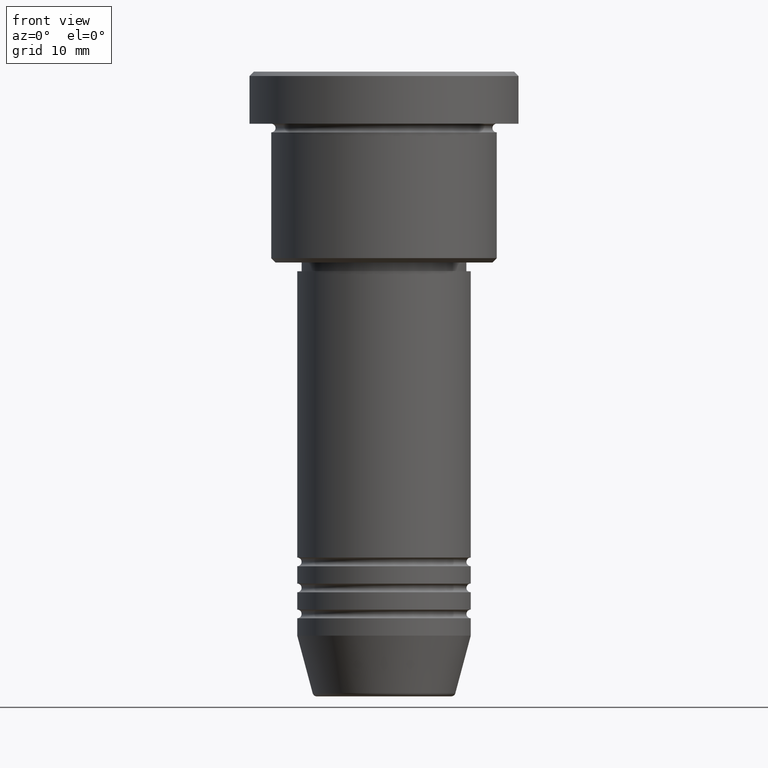
[diagram: clean part render]
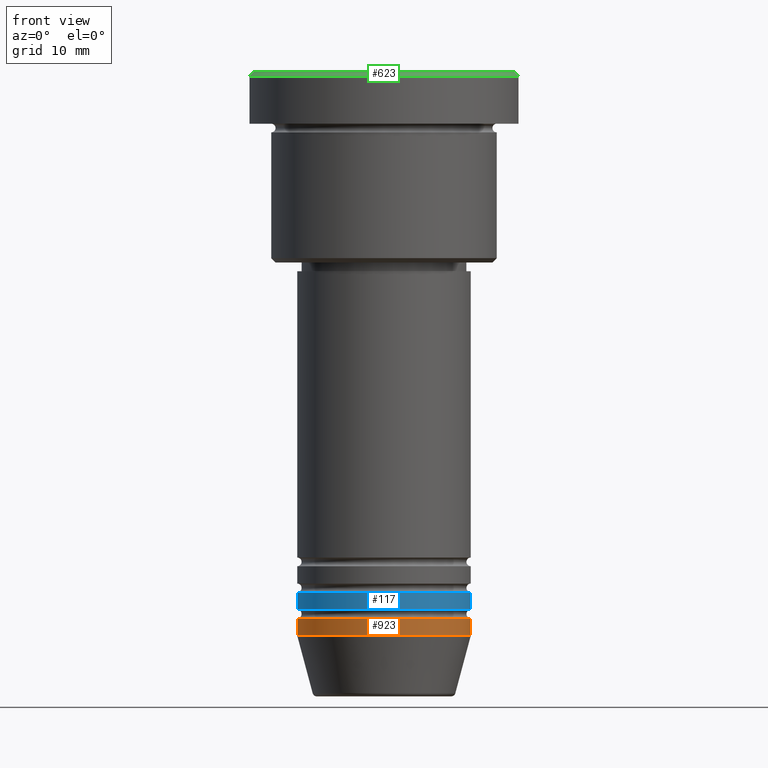
[diagram: same view with three faces highlighted in distinct colors, each labeled with its STEP entity id]
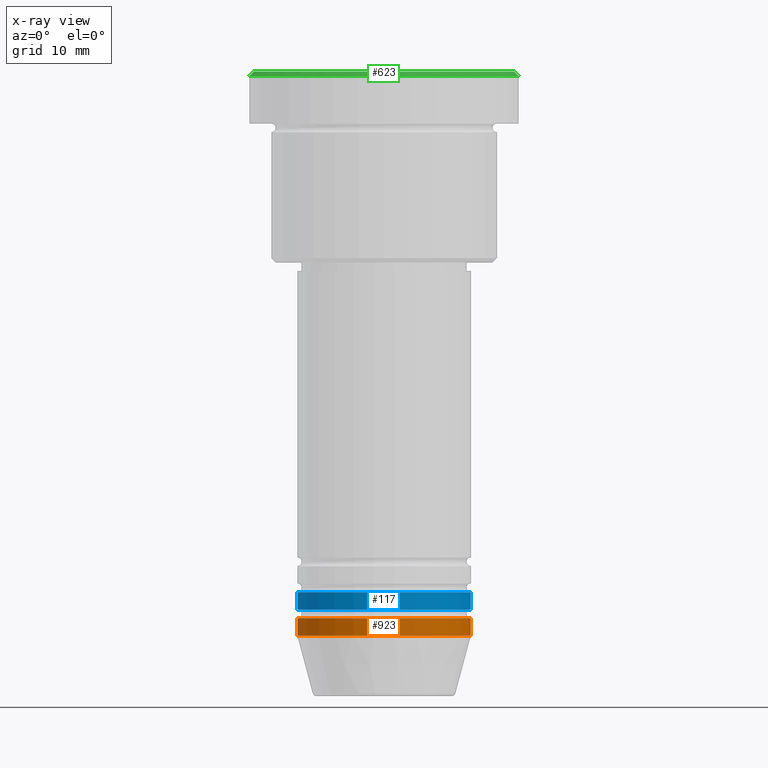
[diagram: x-ray of the same camera — body ghosted, the three highlighted faces saturated]
A machine part, front view with three faces highlighted in distinct colors.
The next image is the same camera in x-ray (body ghosted, the three faces saturated) — at least one of them is partly hidden behind the body in this view.
Their STEP definitions:

[orange] entity #923 — the highlighted cylindrical surface (partial cylindrical patch) has radius 10 mm, axis along (-0, -0, 1).
#1 = ORIENTED_EDGE ( 'NONE', *, *, #419, .T. ) ;
#35 = AXIS2_PLACEMENT_3D ( 'NONE', #376, #909, #446 ) ;
#61 = DIRECTION ( 'NONE',  ( -0.000000000000000000, -0.000000000000000000, 1.000000000000000000 ) ) ;
#114 = CARTESIAN_POINT ( 'NONE',  ( -10.00000000000000000, 1.224646799147353256E-15, -63.00000000000000000 ) ) ;
#124 = VERTEX_POINT ( 'NONE', #320 ) ;
#182 = DIRECTION ( 'NONE',  ( -0.000000000000000000, -0.000000000000000000, 1.000000000000000000 ) ) ;
#200 = EDGE_CURVE ( 'NONE', #710, #124, #578, .T. ) ;
#206 = VECTOR ( 'NONE', #182, 1000.000000000000000 ) ;
#269 = ORIENTED_EDGE ( 'NONE', *, *, #983, .F. ) ;
#277 = CARTESIAN_POINT ( 'NONE',  ( -10.00000000000000000, 1.224646799147353256E-15, 0.000000000000000000 ) ) ;
#310 = DIRECTION ( 'NONE',  ( 1.000000000000000000, 0.000000000000000000, 0.000000000000000000 ) ) ;
#320 = CARTESIAN_POINT ( 'NONE',  ( 10.00000000000000000, 0.000000000000000000, -63.00000000000000000 ) ) ;
#358 = FACE_OUTER_BOUND ( 'NONE', #422, .T. ) ;
#359 = CIRCLE ( 'NONE', #1083, 10.00000000000000000 ) ;
#376 = CARTESIAN_POINT ( 'NONE',  ( 0.000000000000000000, 0.000000000000000000, 0.000000000000000000 ) ) ;
#414 = EDGE_CURVE ( 'NONE', #731, #124, #934, .T. ) ;
#419 = EDGE_CURVE ( 'NONE', #526, #710, #359, .T. ) ;
#422 = EDGE_LOOP ( 'NONE', ( #269, #1, #1113, #1082 ) ) ;
#446 = DIRECTION ( 'NONE',  ( 1.000000000000000000, 0.000000000000000000, 0.000000000000000000 ) ) ;
#463 = DIRECTION ( 'NONE',  ( -0.000000000000000000, -0.000000000000000000, 1.000000000000000000 ) ) ;
#473 = CARTESIAN_POINT ( 'NONE',  ( 10.00000000000000000, 0.000000000000000000, -65.00000000000000000 ) ) ;
#526 = VERTEX_POINT ( 'NONE', #976 ) ;
#553 = CYLINDRICAL_SURFACE ( 'NONE', #35, 10.00000000000000000 ) ;
#578 = LINE ( 'NONE', #1026, #1101 ) ;
#690 = CARTESIAN_POINT ( 'NONE',  ( 0.000000000000000000, 0.000000000000000000, -63.00000000000000000 ) ) ;
#710 = VERTEX_POINT ( 'NONE', #473 ) ;
#731 = VERTEX_POINT ( 'NONE', #114 ) ;
#856 = DIRECTION ( 'NONE',  ( 1.000000000000000000, 0.000000000000000000, 0.000000000000000000 ) ) ;
#909 = DIRECTION ( 'NONE',  ( -0.000000000000000000, -0.000000000000000000, 1.000000000000000000 ) ) ;
#923 = ADVANCED_FACE ( 'NONE', ( #358 ), #553, .T. ) ;
#934 = CIRCLE ( 'NONE', #1118, 10.00000000000000000 ) ;
#976 = CARTESIAN_POINT ( 'NONE',  ( -10.00000000000000000, 1.224646799147353256E-15, -65.00000000000000000 ) ) ;
#983 = EDGE_CURVE ( 'NONE', #526, #731, #985, .T. ) ;
#985 = LINE ( 'NONE', #277, #206 ) ;
#1026 = CARTESIAN_POINT ( 'NONE',  ( 10.00000000000000000, 0.000000000000000000, 0.000000000000000000 ) ) ;
#1047 = CARTESIAN_POINT ( 'NONE',  ( 0.000000000000000000, 0.000000000000000000, -65.00000000000000000 ) ) ;
#1082 = ORIENTED_EDGE ( 'NONE', *, *, #414, .F. ) ;
#1083 = AXIS2_PLACEMENT_3D ( 'NONE', #1047, #61, #856 ) ;
#1101 = VECTOR ( 'NONE', #463, 1000.000000000000000 ) ;
#1113 = ORIENTED_EDGE ( 'NONE', *, *, #200, .T. ) ;
#1118 = AXIS2_PLACEMENT_3D ( 'NONE', #690, #1154, #310 ) ;
#1154 = DIRECTION ( 'NONE',  ( -0.000000000000000000, -0.000000000000000000, 1.000000000000000000 ) ) ;

[blue] entity #117 — the highlighted cylindrical surface (partial cylindrical patch) has radius 10 mm, axis along (-0, -0, 1).
#57 = CYLINDRICAL_SURFACE ( 'NONE', #1011, 10.00000000000000000 ) ;
#80 = LINE ( 'NONE', #321, #189 ) ;
#113 = DIRECTION ( 'NONE',  ( -0.000000000000000000, -0.000000000000000000, 1.000000000000000000 ) ) ;
#117 = ADVANCED_FACE ( 'NONE', ( #868 ), #57, .T. ) ;
#118 = DIRECTION ( 'NONE',  ( 1.000000000000000000, 0.000000000000000000, 0.000000000000000000 ) ) ;
#189 = VECTOR ( 'NONE', #687, 1000.000000000000000 ) ;
#196 = CARTESIAN_POINT ( 'NONE',  ( 10.00000000000000000, 0.000000000000000000, -61.99999999999998579 ) ) ;
#234 = ORIENTED_EDGE ( 'NONE', *, *, #895, .F. ) ;
#238 = DIRECTION ( 'NONE',  ( 1.000000000000000000, 0.000000000000000000, 0.000000000000000000 ) ) ;
#256 = VERTEX_POINT ( 'NONE', #196 ) ;
#317 = CIRCLE ( 'NONE', #1035, 10.00000000000000000 ) ;
#321 = CARTESIAN_POINT ( 'NONE',  ( -10.00000000000000000, 1.224646799147353256E-15, 0.000000000000000000 ) ) ;
#354 = DIRECTION ( 'NONE',  ( -0.000000000000000000, -0.000000000000000000, 1.000000000000000000 ) ) ;
#367 = LINE ( 'NONE', #803, #464 ) ;
#370 = ORIENTED_EDGE ( 'NONE', *, *, #1162, .F. ) ;
#380 = CARTESIAN_POINT ( 'NONE',  ( -10.00000000000000000, 1.224646799147353256E-15, -59.99999999999998579 ) ) ;
#457 = VERTEX_POINT ( 'NONE', #1135 ) ;
#464 = VECTOR ( 'NONE', #354, 1000.000000000000000 ) ;
#493 = CARTESIAN_POINT ( 'NONE',  ( 0.000000000000000000, 0.000000000000000000, -61.99999999999998579 ) ) ;
#534 = CARTESIAN_POINT ( 'NONE',  ( 0.000000000000000000, 0.000000000000000000, -59.99999999999998579 ) ) ;
#580 = EDGE_CURVE ( 'NONE', #256, #944, #367, .T. ) ;
#606 = AXIS2_PLACEMENT_3D ( 'NONE', #493, #113, #118 ) ;
#687 = DIRECTION ( 'NONE',  ( -0.000000000000000000, -0.000000000000000000, 1.000000000000000000 ) ) ;
#745 = ORIENTED_EDGE ( 'NONE', *, *, #1034, .T. ) ;
#768 = DIRECTION ( 'NONE',  ( -0.000000000000000000, -0.000000000000000000, 1.000000000000000000 ) ) ;
#803 = CARTESIAN_POINT ( 'NONE',  ( 10.00000000000000000, 0.000000000000000000, 0.000000000000000000 ) ) ;
#824 = CIRCLE ( 'NONE', #606, 10.00000000000000000 ) ;
#855 = ORIENTED_EDGE ( 'NONE', *, *, #580, .T. ) ;
#868 = FACE_OUTER_BOUND ( 'NONE', #1030, .T. ) ;
#873 = CARTESIAN_POINT ( 'NONE',  ( 0.000000000000000000, 0.000000000000000000, 0.000000000000000000 ) ) ;
#882 = DIRECTION ( 'NONE',  ( -0.000000000000000000, -0.000000000000000000, 1.000000000000000000 ) ) ;
#895 = EDGE_CURVE ( 'NONE', #1089, #944, #317, .T. ) ;
#944 = VERTEX_POINT ( 'NONE', #977 ) ;
#977 = CARTESIAN_POINT ( 'NONE',  ( 10.00000000000000000, 0.000000000000000000, -59.99999999999998579 ) ) ;
#1011 = AXIS2_PLACEMENT_3D ( 'NONE', #873, #768, #1137 ) ;
#1030 = EDGE_LOOP ( 'NONE', ( #370, #745, #855, #234 ) ) ;
#1034 = EDGE_CURVE ( 'NONE', #457, #256, #824, .T. ) ;
#1035 = AXIS2_PLACEMENT_3D ( 'NONE', #534, #882, #238 ) ;
#1089 = VERTEX_POINT ( 'NONE', #380 ) ;
#1135 = CARTESIAN_POINT ( 'NONE',  ( -10.00000000000000000, 1.224646799147353256E-15, -61.99999999999998579 ) ) ;
#1137 = DIRECTION ( 'NONE',  ( 1.000000000000000000, 0.000000000000000000, 0.000000000000000000 ) ) ;
#1162 = EDGE_CURVE ( 'NONE', #457, #1089, #80, .T. ) ;

[green] entity #623 — the highlighted conical surface has half-angle 45 deg.
#25 = DIRECTION ( 'NONE',  ( 0.000000000000000000, 0.000000000000000000, -1.000000000000000000 ) ) ;
#66 = EDGE_CURVE ( 'NONE', #907, #1007, #737, .T. ) ;
#123 = DIRECTION ( 'NONE',  ( -1.000000000000000000, 0.000000000000000000, 0.000000000000000000 ) ) ;
#132 = CARTESIAN_POINT ( 'NONE',  ( 15.00000000000000000, 1.836970198721029589E-15, 0.000000000000000000 ) ) ;
#166 = DIRECTION ( 'NONE',  ( -0.000000000000000000, -0.000000000000000000, 1.000000000000000000 ) ) ;
#203 = CARTESIAN_POINT ( 'NONE',  ( 15.00000000000000000, 1.867586368699713376E-15, 0.000000000000000000 ) ) ;
#207 = EDGE_CURVE ( 'NONE', #1003, #1007, #294, .T. ) ;
#222 = ORIENTED_EDGE ( 'NONE', *, *, #829, .F. ) ;
#244 = AXIS2_PLACEMENT_3D ( 'NONE', #964, #166, #621 ) ;
#294 = LINE ( 'NONE', #378, #825 ) ;
#306 = ORIENTED_EDGE ( 'NONE', *, *, #350, .F. ) ;
#313 = FACE_OUTER_BOUND ( 'NONE', #626, .T. ) ;
#350 = EDGE_CURVE ( 'NONE', #1039, #907, #410, .T. ) ;
#378 = CARTESIAN_POINT ( 'NONE',  ( -15.00000000000000000, 0.000000000000000000, 0.000000000000000000 ) ) ;
#410 = LINE ( 'NONE', #132, #902 ) ;
#420 = CARTESIAN_POINT ( 'NONE',  ( 15.50000000000000000, 0.000000000000000000, -0.5000000000000125455 ) ) ;
#430 = DIRECTION ( 'NONE',  ( 1.000000000000000000, 0.000000000000000000, 0.000000000000000000 ) ) ;
#450 = CIRCLE ( 'NONE', #244, 15.00000000000000000 ) ;
#524 = DIRECTION ( 'NONE',  ( 0.000000000000000000, 0.000000000000000000, -1.000000000000000000 ) ) ;
#585 = AXIS2_PLACEMENT_3D ( 'NONE', #853, #25, #123 ) ;
#621 = DIRECTION ( 'NONE',  ( 1.000000000000000000, 0.000000000000000000, 0.000000000000000000 ) ) ;
#623 = ADVANCED_FACE ( 'NONE', ( #313 ), #1097, .T. ) ;
#626 = EDGE_LOOP ( 'NONE', ( #306, #222, #899, #668 ) ) ;
#659 = CARTESIAN_POINT ( 'NONE',  ( -15.00000000000000000, 0.000000000000000000, 0.000000000000000000 ) ) ;
#668 = ORIENTED_EDGE ( 'NONE', *, *, #66, .F. ) ;
#678 = CARTESIAN_POINT ( 'NONE',  ( -15.50000000000000000, 1.898202538678397557E-15, -0.5000000000000125455 ) ) ;
#737 = CIRCLE ( 'NONE', #1040, 15.50000000000000000 ) ;
#760 = DIRECTION ( 'NONE',  ( 0.7071067811865389130, 8.659560562354828088E-17, -0.7071067811865561215 ) ) ;
#825 = VECTOR ( 'NONE', #844, 1000.000000000000000 ) ;
#829 = EDGE_CURVE ( 'NONE', #1003, #1039, #450, .T. ) ;
#844 = DIRECTION ( 'NONE',  ( -0.7071067811865389130, 0.000000000000000000, -0.7071067811865561215 ) ) ;
#853 = CARTESIAN_POINT ( 'NONE',  ( 0.000000000000000000, 0.000000000000000000, 0.000000000000000000 ) ) ;
#899 = ORIENTED_EDGE ( 'NONE', *, *, #207, .T. ) ;
#902 = VECTOR ( 'NONE', #760, 1000.000000000000000 ) ;
#907 = VERTEX_POINT ( 'NONE', #420 ) ;
#964 = CARTESIAN_POINT ( 'NONE',  ( 0.000000000000000000, 0.000000000000000000, 0.000000000000000000 ) ) ;
#1003 = VERTEX_POINT ( 'NONE', #659 ) ;
#1007 = VERTEX_POINT ( 'NONE', #678 ) ;
#1039 = VERTEX_POINT ( 'NONE', #203 ) ;
#1040 = AXIS2_PLACEMENT_3D ( 'NONE', #1048, #524, #430 ) ;
#1048 = CARTESIAN_POINT ( 'NONE',  ( 0.000000000000000000, 0.000000000000000000, -0.5000000000000125455 ) ) ;
#1097 = CONICAL_SURFACE ( 'NONE', #585, 15.00000000000000000, 0.7853981633974361776 ) ;